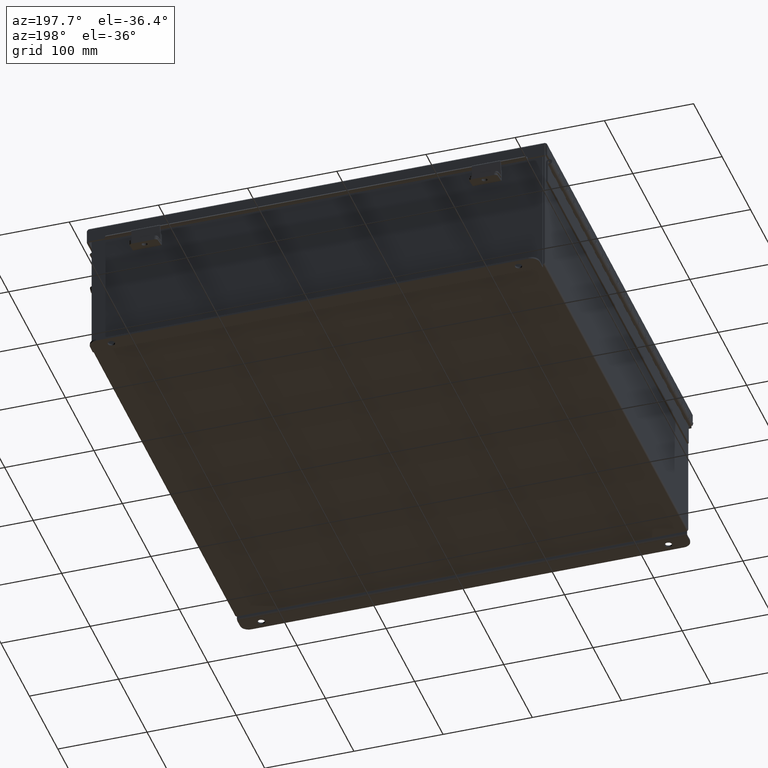
[diagram: clean part render]
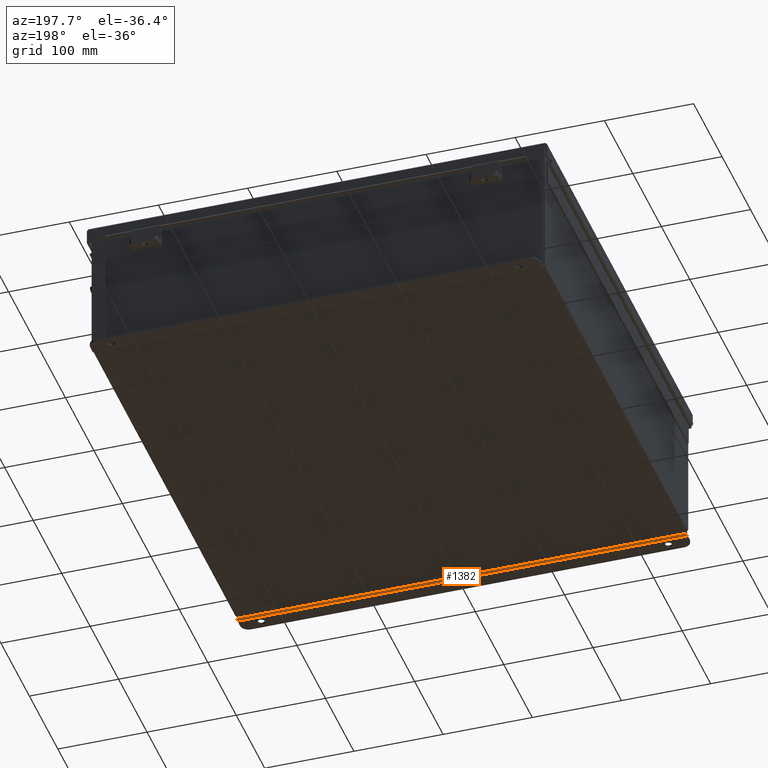
[diagram: same view with one face highlighted and labeled with its STEP entity id]
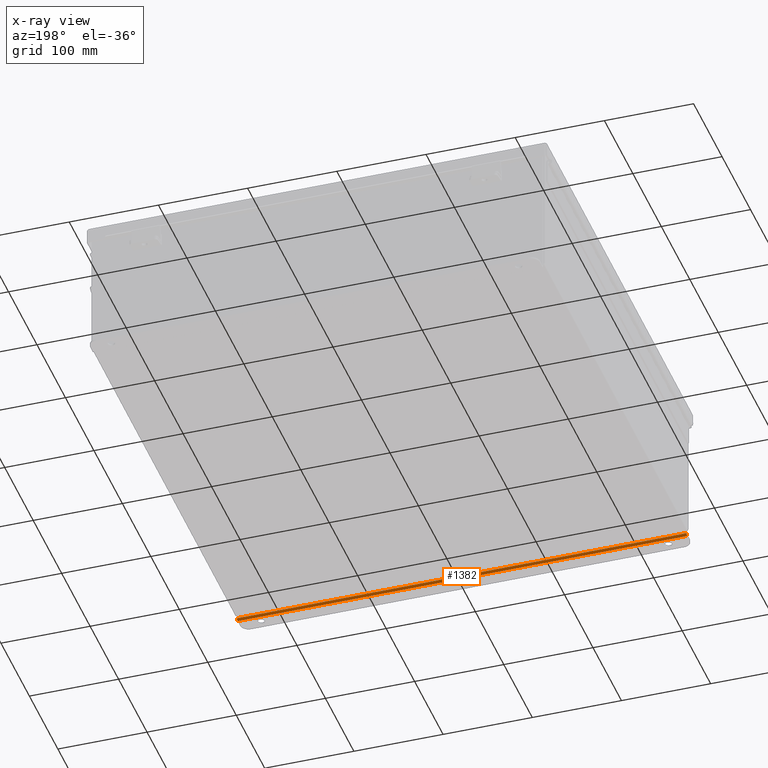
[diagram: x-ray of the same camera — body ghosted, the highlighted face saturated]
A machine part, auxiliary view. The second image highlights one B-rep face of the part: STEP entity #1382.
The next image is the same camera in x-ray: the body ghosted, the highlighted face saturated — about 0% of this face is hidden behind the body in this view.
In plain terms, the highlighted cylindrical surface (edge-blend (fillet) strip) has radius 2.2276 mm, axis along (1, 0, -0).
Its self-contained STEP definition (entity closure, byte-faithful):
#209 = LINE ( 'NONE', #2275, #13218 ) ;
#392 = CARTESIAN_POINT ( 'NONE',  ( 9.925300000000000000, 0.01300000000000010700, -3.187000000000000300 ) ) ;
#782 = VERTEX_POINT ( 'NONE', #392 ) ;
#1177 = AXIS2_PLACEMENT_3D ( 'NONE', #20280, #9561, #22035 ) ;
#1382 = ADVANCED_FACE ( 'NONE', ( #10280 ), #14482, .T. ) ;
#1404 = CARTESIAN_POINT ( 'NONE',  ( -9.925299999999992900, -0.07470000000000015500, -3.099299999999999900 ) ) ;
#1867 = CARTESIAN_POINT ( 'NONE',  ( 9.925300000000000000, 0.01300000000000010700, -3.099299999999999900 ) ) ;
#2275 = CARTESIAN_POINT ( 'NONE',  ( 9.925300000000000000, 0.01300000000000229300, -3.187000000000000300 ) ) ;
#3347 = DIRECTION ( 'NONE',  ( 1.000000000000000000, 4.910036603141682400E-031, -0.0000000000000000000 ) ) ;
#4334 = EDGE_CURVE ( 'NONE', #12520, #782, #10996, .T. ) ;
#5058 = DIRECTION ( 'NONE',  ( 0.0000000000000000000, 0.0000000000000000000, 1.000000000000000000 ) ) ;
#6384 = ORIENTED_EDGE ( 'NONE', *, *, #4334, .F. ) ;
#6575 = AXIS2_PLACEMENT_3D ( 'NONE', #21407, #19410, #19461 ) ;
#7562 = EDGE_CURVE ( 'NONE', #21137, #12520, #13517, .T. ) ;
#7732 = AXIS2_PLACEMENT_3D ( 'NONE', #1867, #16766, #5058 ) ;
#8802 = VECTOR ( 'NONE', #16209, 39.37007874015748100 ) ;
#9022 = ORIENTED_EDGE ( 'NONE', *, *, #16959, .F. ) ;
#9561 = DIRECTION ( 'NONE',  ( -1.000000000000000000, -4.910036603141682400E-031, 0.0000000000000000000 ) ) ;
#10120 = ORIENTED_EDGE ( 'NONE', *, *, #10832, .T. ) ;
#10280 = FACE_OUTER_BOUND ( 'NONE', #17869, .T. ) ;
#10832 = EDGE_CURVE ( 'NONE', #15835, #782, #209, .T. ) ;
#10996 = CIRCLE ( 'NONE', #7732, 0.08770000000000026400 ) ;
#11727 = CARTESIAN_POINT ( 'NONE',  ( 9.925300000000000000, -0.07470000000000015500, -3.099300000000004400 ) ) ;
#11916 = CIRCLE ( 'NONE', #1177, 0.08770000000000026400 ) ;
#12520 = VERTEX_POINT ( 'NONE', #11727 ) ;
#13218 = VECTOR ( 'NONE', #3347, 39.37007874015748100 ) ;
#13517 = LINE ( 'NONE', #16079, #8802 ) ;
#14482 = CYLINDRICAL_SURFACE ( 'NONE', #6575, 0.08770000000000026400 ) ;
#15835 = VERTEX_POINT ( 'NONE', #16867 ) ;
#16079 = CARTESIAN_POINT ( 'NONE',  ( -9.925299999999996500, -0.07470000000000015500, -3.099299999999999900 ) ) ;
#16209 = DIRECTION ( 'NONE',  ( 1.000000000000000000, 4.910036603141682400E-031, -0.0000000000000000000 ) ) ;
#16766 = DIRECTION ( 'NONE',  ( 1.000000000000000000, 4.910036603141682400E-031, -0.0000000000000000000 ) ) ;
#16867 = CARTESIAN_POINT ( 'NONE',  ( -9.925299999999992900, 0.01300000000000010700, -3.187000000000004700 ) ) ;
#16959 = EDGE_CURVE ( 'NONE', #15835, #21137, #11916, .T. ) ;
#17869 = EDGE_LOOP ( 'NONE', ( #19655, #9022, #10120, #6384 ) ) ;
#19410 = DIRECTION ( 'NONE',  ( -1.000000000000000000, -4.910036603141682400E-031, 0.0000000000000000000 ) ) ;
#19461 = DIRECTION ( 'NONE',  ( 0.0000000000000000000, -3.699053013085864000E-015, -1.000000000000000000 ) ) ;
#19655 = ORIENTED_EDGE ( 'NONE', *, *, #7562, .F. ) ;
#20280 = CARTESIAN_POINT ( 'NONE',  ( -9.925299999999992900, 0.01299999999999792100, -3.099300000000004400 ) ) ;
#21137 = VERTEX_POINT ( 'NONE', #1404 ) ;
#21407 = CARTESIAN_POINT ( 'NONE',  ( -9.925299999999996500, 0.01299999999999792100, -3.099300000000004400 ) ) ;
#22035 = DIRECTION ( 'NONE',  ( 0.0000000000000000000, 0.0000000000000000000, 1.000000000000000000 ) ) ;